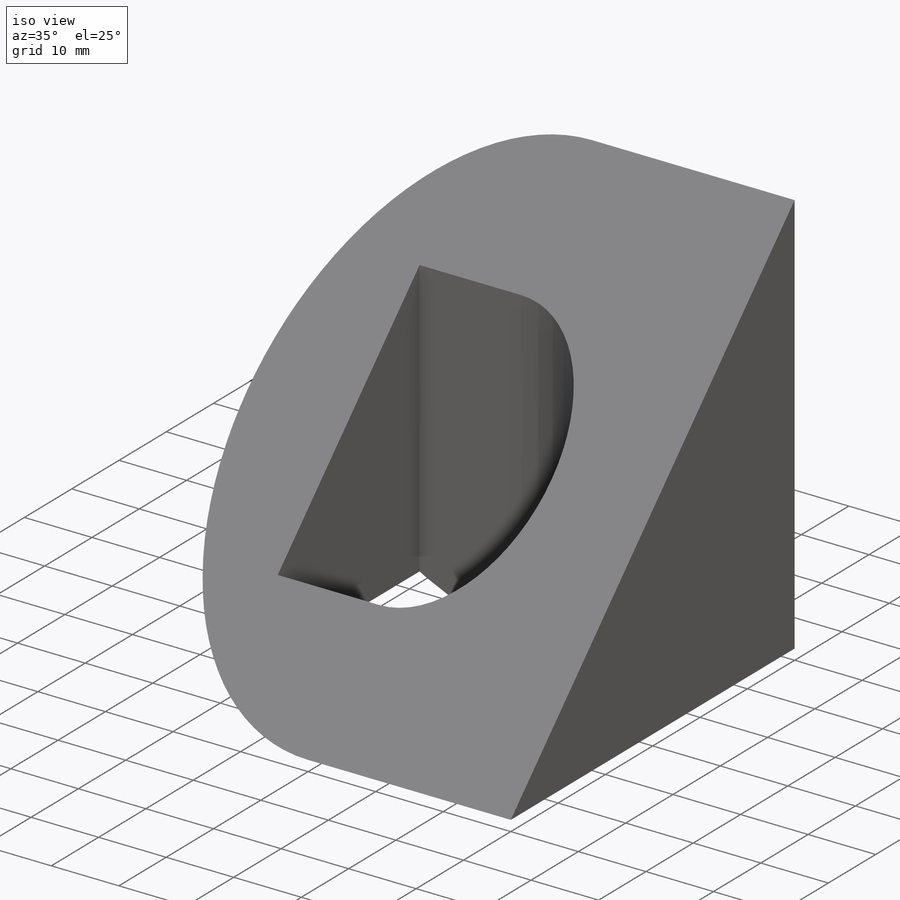
[diagram: iso view]
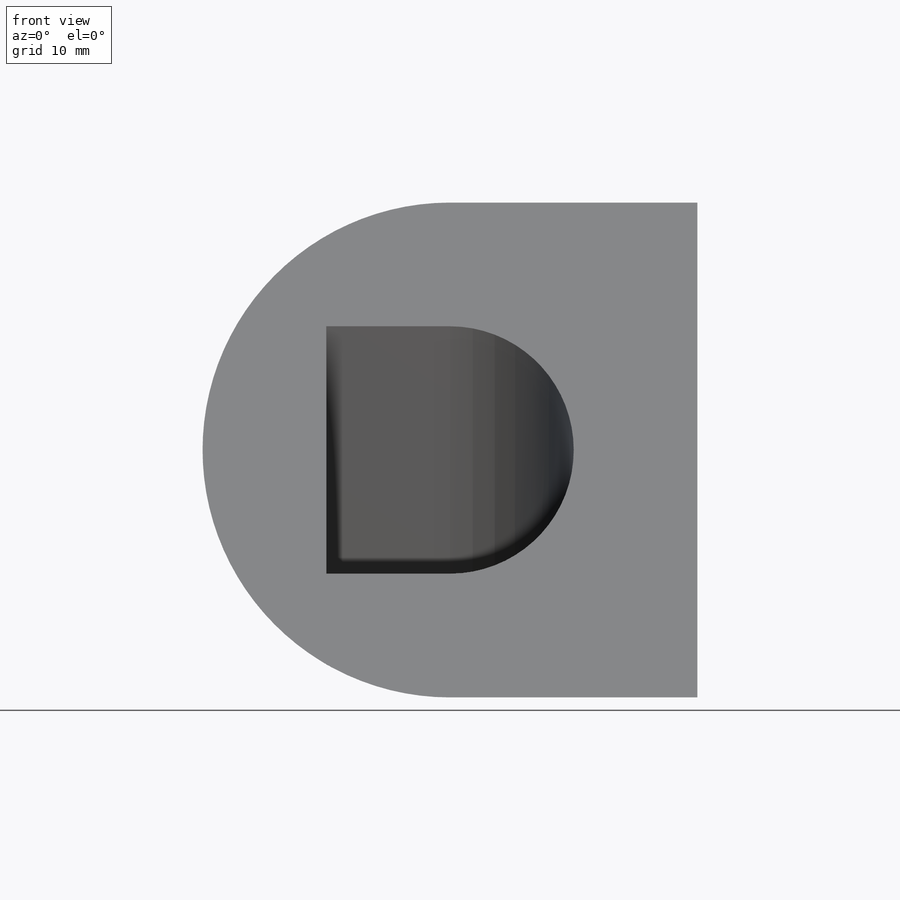
[diagram: front view]
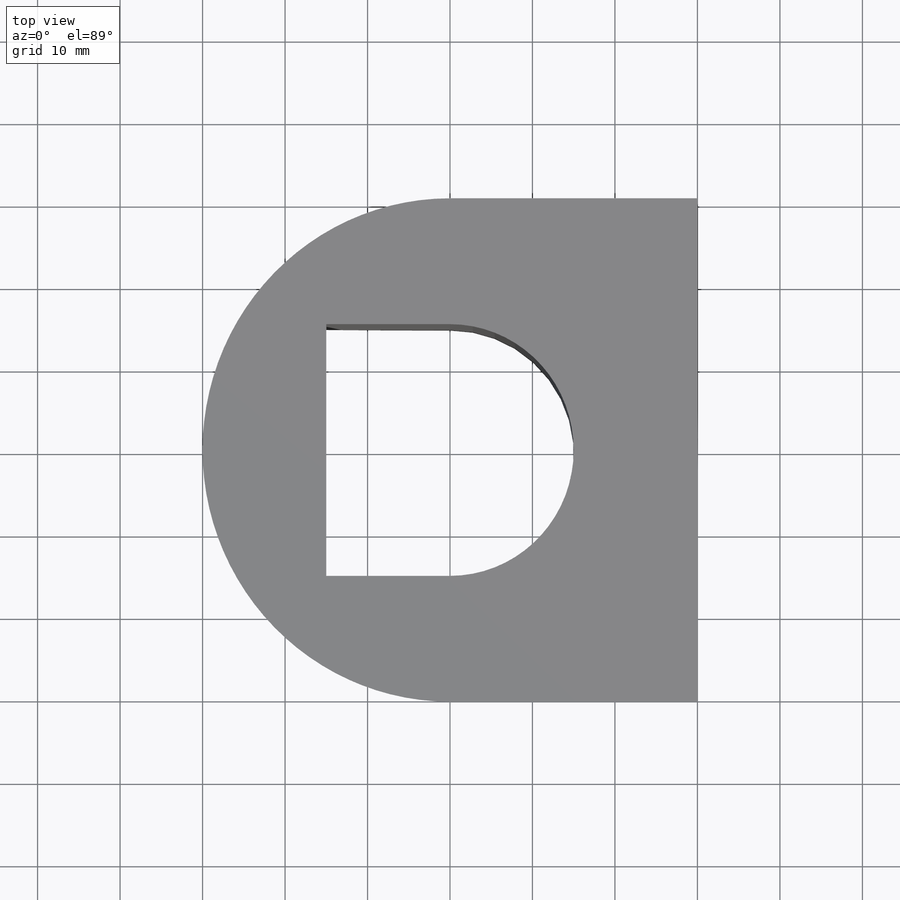
[diagram: top view]
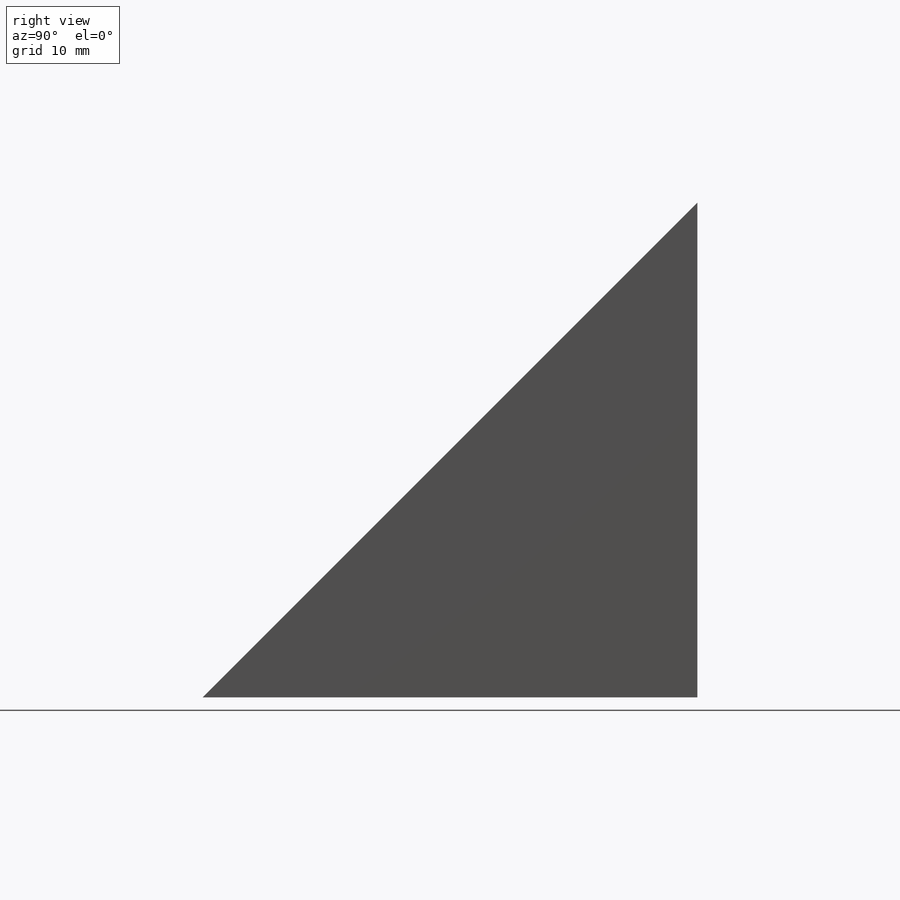
[diagram: right view]
SOLIDWORKS PART (.sldprt)
format: sldprt  version: not decoded by parser v0  size: 188,928 bytes
history: native  units: mm
features: sketch x5, cut_extrude x4, plane x3, material x1, extrude x1 (+13 scaffold rows collapsed)
feature tree (27):
  scaffold x13  (default folders/planes/origin — collapsed)
  material  "Material <not specified>"
  sketch  "Sketch1"  dims[c1.D1=~50.597767mm c1.D2=~57.653232mm c2.D1=60.0mm c2.D2=60.0mm]
  extrude  "Boss-Extrude1"  Depth=60mm
  sketch  "Sketch2"  dims[D1=30.0mm D2=30.0mm D3=30.0mm D4=30.0mm D5=30.0mm]
  cut_extrude  "Cut-Extrude1"  Depth=60mm
  plane  "Plane1"  Offset=40mm
  plane  "Plane2"  Offset=20mm
  sketch  "Sketch3"  dims[D1=60.0mm]
  cut_extrude  "Cut-Extrude2"  Depth=60mm
  sketch  "Sketch4"  dims[D1=60.0mm D2=60.0mm D3=60.0mm]
  cut_extrude  "Cut-Extrude3"  Depth=60mm
  plane  "Plane3"  Offset=60mm
  sketch  "Sketch6"  dims[D1=~26.275936mm D2=30.0mm D3=30.0mm D4=15.0mm D5=15.0mm D6=15.0mm]
  cut_extrude  "Cut-Extrude6"  Depth=60mm
decode coverage: 10 of 10 modeling features carry decoded parameters
note: ~ marks probable driven/reference dimensions
note: suppression state not decoded; provenance and decode notes live in map.json
